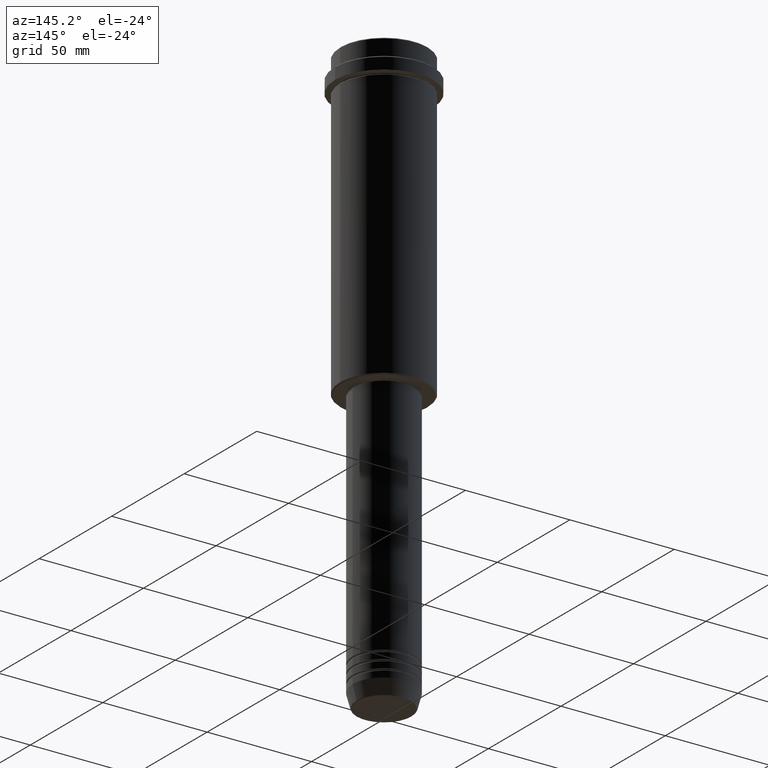
[diagram: clean part render]
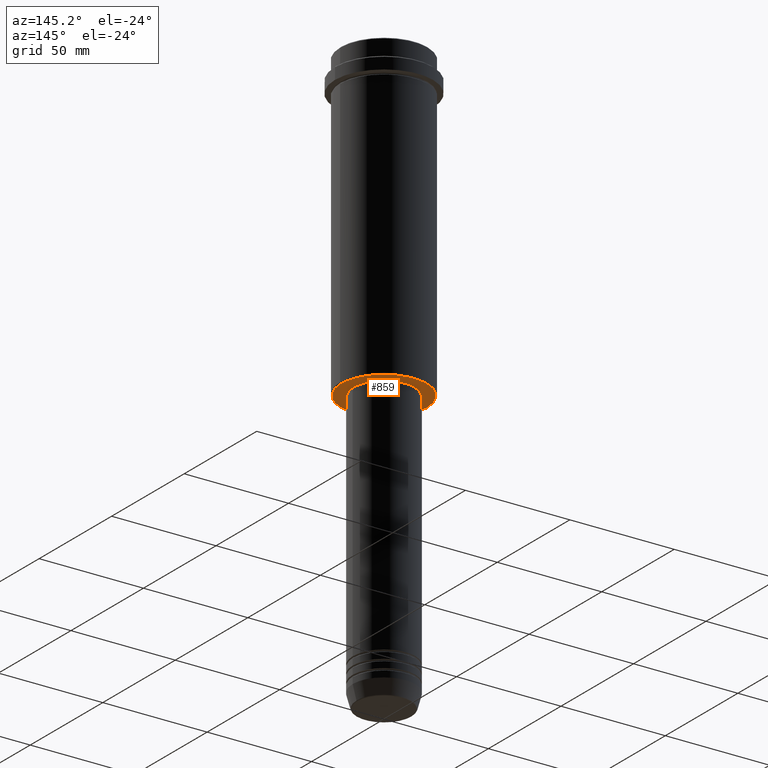
[diagram: same view with one face highlighted and labeled with its STEP entity id]
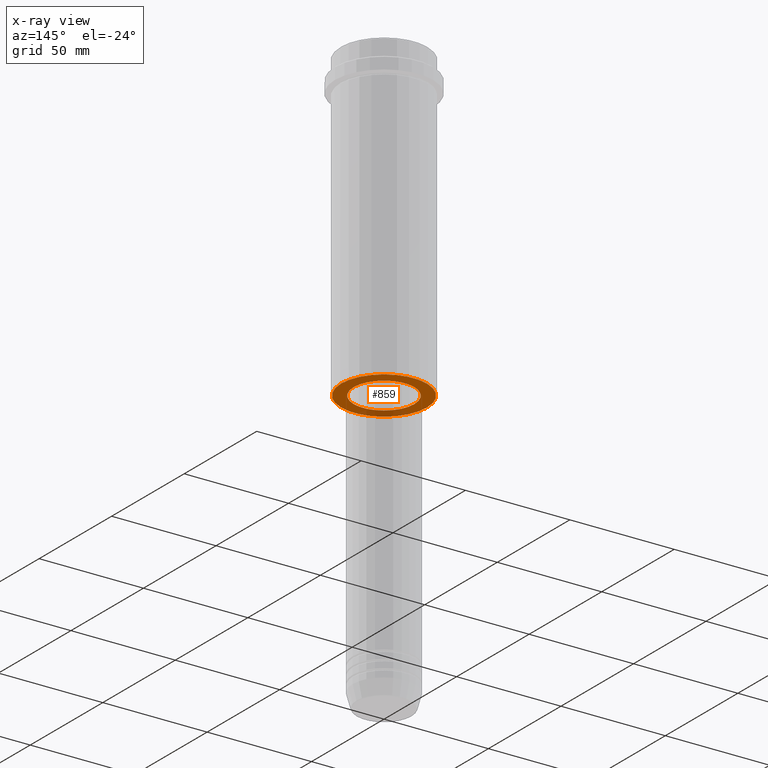
[diagram: x-ray of the same camera — body ghosted, the highlighted face saturated]
A machine part, auxiliary view. The second image highlights one B-rep face of the part: STEP entity #859.
The next image is the same camera in x-ray: the body ghosted, the highlighted face saturated — about 15% of this face is hidden behind the body in this view.
In plain terms, the highlighted planar face has unit normal (0, 0, -1).
Its self-contained STEP definition (entity closure, byte-faithful):
#25 = ORIENTED_EDGE ( 'NONE', *, *, #982, .T. ) ;
#33 = CIRCLE ( 'NONE', #1125, 14.49999999999999822 ) ;
#68 = DIRECTION ( 'NONE',  ( 0.000000000000000000, 0.000000000000000000, -1.000000000000000000 ) ) ;
#73 = CIRCLE ( 'NONE', #872, 20.50000000000001776 ) ;
#142 = CIRCLE ( 'NONE', #1334, 14.49999999999999822 ) ;
#155 = DIRECTION ( 'NONE',  ( 1.000000000000000000, 0.000000000000000000, 0.000000000000000000 ) ) ;
#193 = CARTESIAN_POINT ( 'NONE',  ( 0.000000000000000000, 0.000000000000000000, -145.0000000000000284 ) ) ;
#198 = CARTESIAN_POINT ( 'NONE',  ( 14.49999999999999822, 0.000000000000000000, -145.0000000000000284 ) ) ;
#254 = PLANE ( 'NONE',  #469 ) ;
#268 = DIRECTION ( 'NONE',  ( -0.000000000000000000, -0.000000000000000000, 1.000000000000000000 ) ) ;
#287 = DIRECTION ( 'NONE',  ( 0.000000000000000000, 0.000000000000000000, -1.000000000000000000 ) ) ;
#294 = CARTESIAN_POINT ( 'NONE',  ( -14.49999999999999822, 1.775737858763662015E-15, -145.0000000000000284 ) ) ;
#316 = CARTESIAN_POINT ( 'NONE',  ( 0.000000000000000000, 21.00000000000000000, -145.0000000000000284 ) ) ;
#365 = FACE_OUTER_BOUND ( 'NONE', #546, .T. ) ;
#469 = AXIS2_PLACEMENT_3D ( 'NONE', #316, #734, #941 ) ;
#477 = EDGE_CURVE ( 'NONE', #1250, #1165, #73, .T. ) ;
#517 = DIRECTION ( 'NONE',  ( -1.000000000000000000, 0.000000000000000000, 0.000000000000000000 ) ) ;
#546 = EDGE_LOOP ( 'NONE', ( #1074, #25 ) ) ;
#734 = DIRECTION ( 'NONE',  ( 0.000000000000000000, 0.000000000000000000, -1.000000000000000000 ) ) ;
#800 = FACE_BOUND ( 'NONE', #1051, .T. ) ;
#825 = CARTESIAN_POINT ( 'NONE',  ( 20.50000000000001776, 0.000000000000000000, -145.0000000000000284 ) ) ;
#859 = ADVANCED_FACE ( 'NONE', ( #365, #800 ), #254, .T. ) ;
#872 = AXIS2_PLACEMENT_3D ( 'NONE', #193, #68, #517 ) ;
#875 = AXIS2_PLACEMENT_3D ( 'NONE', #1266, #287, #1115 ) ;
#904 = CARTESIAN_POINT ( 'NONE',  ( 0.000000000000000000, 0.000000000000000000, -145.0000000000000284 ) ) ;
#908 = VERTEX_POINT ( 'NONE', #294 ) ;
#910 = VERTEX_POINT ( 'NONE', #198 ) ;
#926 = CARTESIAN_POINT ( 'NONE',  ( -20.50000000000001776, 2.541142108230758663E-15, -145.0000000000000284 ) ) ;
#933 = ORIENTED_EDGE ( 'NONE', *, *, #1022, .T. ) ;
#941 = DIRECTION ( 'NONE',  ( -1.000000000000000000, 0.000000000000000000, -0.000000000000000000 ) ) ;
#982 = EDGE_CURVE ( 'NONE', #1165, #1250, #990, .T. ) ;
#984 = DIRECTION ( 'NONE',  ( -0.000000000000000000, -0.000000000000000000, 1.000000000000000000 ) ) ;
#990 = CIRCLE ( 'NONE', #875, 20.50000000000001776 ) ;
#1022 = EDGE_CURVE ( 'NONE', #908, #910, #33, .T. ) ;
#1028 = CARTESIAN_POINT ( 'NONE',  ( 0.000000000000000000, 0.000000000000000000, -145.0000000000000284 ) ) ;
#1051 = EDGE_LOOP ( 'NONE', ( #1407, #933 ) ) ;
#1074 = ORIENTED_EDGE ( 'NONE', *, *, #477, .T. ) ;
#1115 = DIRECTION ( 'NONE',  ( -1.000000000000000000, 0.000000000000000000, 0.000000000000000000 ) ) ;
#1125 = AXIS2_PLACEMENT_3D ( 'NONE', #904, #984, #1300 ) ;
#1158 = EDGE_CURVE ( 'NONE', #910, #908, #142, .T. ) ;
#1165 = VERTEX_POINT ( 'NONE', #926 ) ;
#1250 = VERTEX_POINT ( 'NONE', #825 ) ;
#1266 = CARTESIAN_POINT ( 'NONE',  ( 0.000000000000000000, 0.000000000000000000, -145.0000000000000284 ) ) ;
#1300 = DIRECTION ( 'NONE',  ( 1.000000000000000000, 0.000000000000000000, 0.000000000000000000 ) ) ;
#1334 = AXIS2_PLACEMENT_3D ( 'NONE', #1028, #268, #155 ) ;
#1407 = ORIENTED_EDGE ( 'NONE', *, *, #1158, .T. ) ;